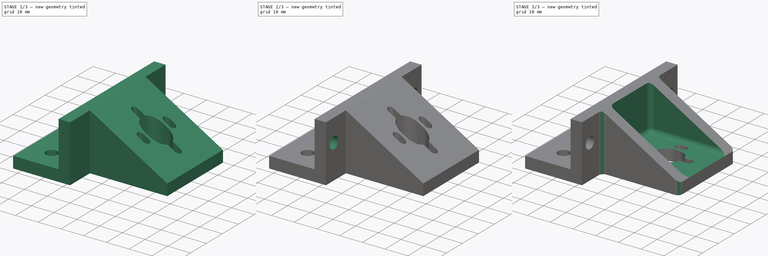
[diagram: build sequence overview — one tinted view per stage of 3, left to right]
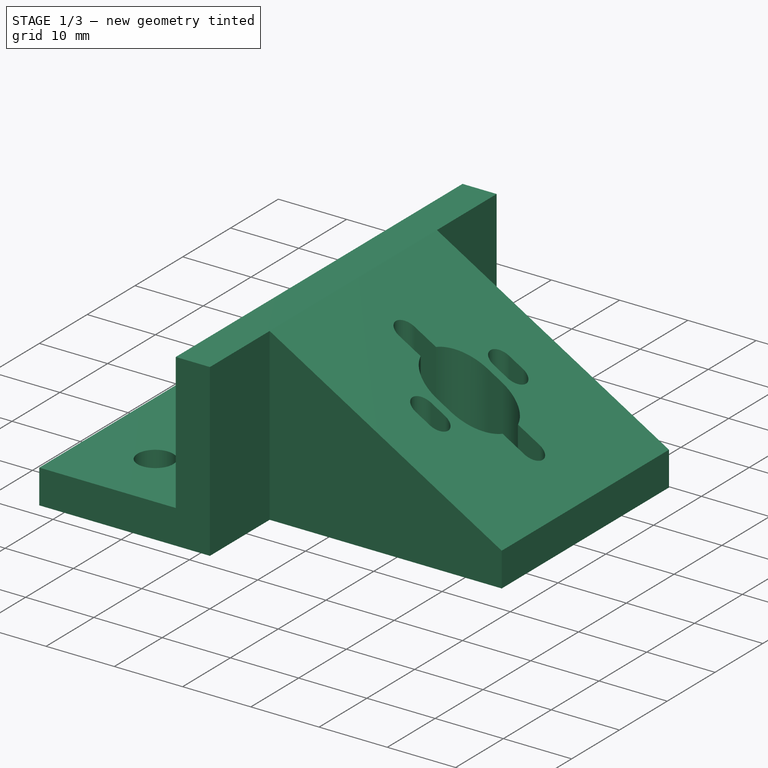
[diagram: stage 1 of 3 — iso view after this stage's code; geometry added in this stage tinted green]
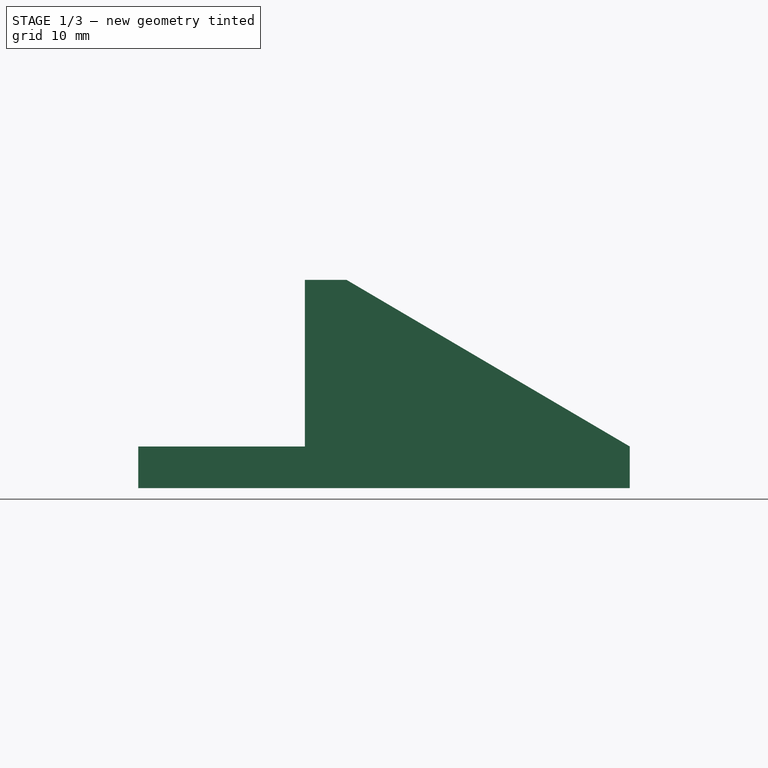
[diagram: stage 1 of 3 — front view after this stage's code; geometry added in this stage tinted green]
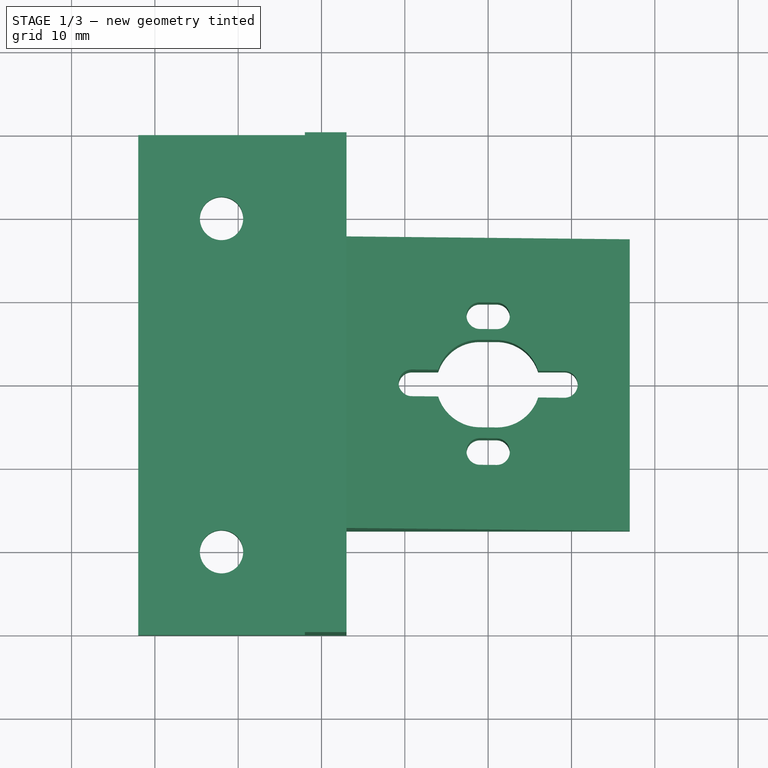
[diagram: stage 1 of 3 — top view after this stage's code; geometry added in this stage tinted green]
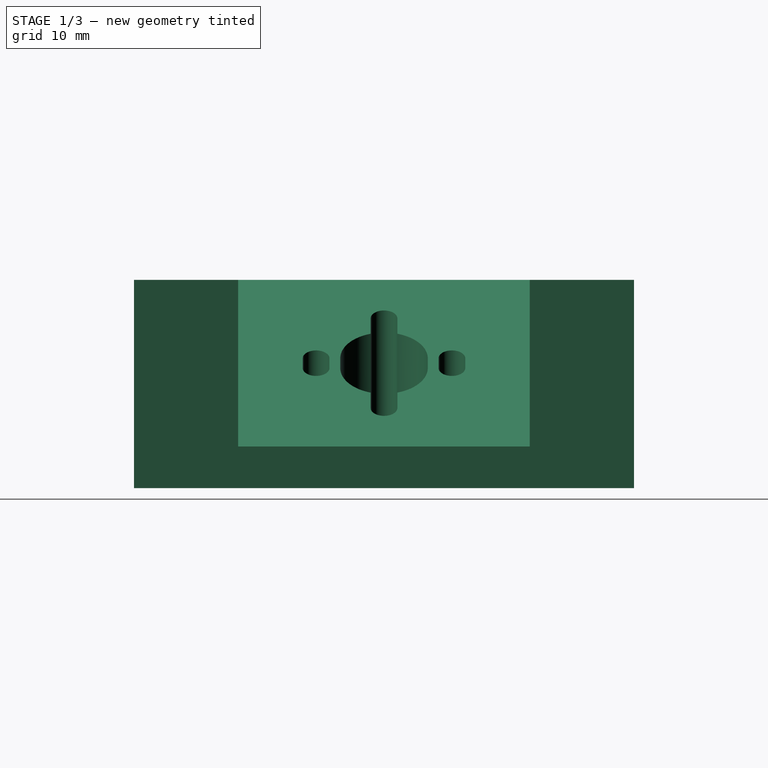
[diagram: stage 1 of 3 — right view after this stage's code; geometry added in this stage tinted green]
FCSTD DOCUMENT  (FreeCAD 0.19R20209 (Git))
Label: trapezewagon-001
License: Creative Commons Attribution
LicenseURL: http://creativecommons.org/licenses/by/4.0/
objects: Sketcher::SketchObject×4, PartDesign::Pocket×3, PartDesign::Pad×1, PartDesign::Fillet×1, PartDesign::Body×1
note: 15 computed .brp shape members not serialized (recipe doc carries the construction recipe); baked Part::Feature solids carry a one-line shape summary decoded from their .brp

FEATURE [Sketcher::SketchObject] Sketch
  MapMode = 5
  Support = -> [XY_Plane]
  expr: Constraints[60] = 16.3 + 2
  expr: Constraints[50] = 16.3 / 2
  sketch-geometry (32):
    g0: Circle [constr] CenterX=0 CenterY=0 CenterZ=0 NormalX=0 NormalY=0 NormalZ=1 AngleXU=0 Radius=11
    g1: LineSegment StartX=-17 StartY=17.5 StartZ=0 EndX=17 EndY=17.5 EndZ=0
    g2: LineSegment StartX=17 StartY=17.5 StartZ=0 EndX=17 EndY=-17.5 EndZ=0
    g3: LineSegment StartX=17 StartY=-17.5 StartZ=0 EndX=-17 EndY=-17.5 EndZ=0
    g4: LineSegment StartX=-42 StartY=30 StartZ=0 EndX=-17 EndY=30 EndZ=0
    g5: LineSegment StartX=-17 StartY=30 StartZ=0 EndX=-17 EndY=17.5 EndZ=0
    g6: LineSegment StartX=-17 StartY=-30 StartZ=0 EndX=-42 EndY=-30 EndZ=0
    g7: LineSegment StartX=-42 StartY=-30 StartZ=0 EndX=-42 EndY=30 EndZ=0
    g8: LineSegment StartX=-17 StartY=-17.5 StartZ=0 EndX=-17 EndY=-30 EndZ=0
    g9: Circle CenterX=-32 CenterY=20 CenterZ=0 NormalX=0 NormalY=0 NormalZ=1 AngleXU=0 Radius=2.6
    g10: Circle CenterX=-32 CenterY=-20 CenterZ=0 NormalX=0 NormalY=0 NormalZ=1 AngleXU=0 Radius=2.6
    g11: ArcOfCircle CenterX=-1 CenterY=3e-16 CenterZ=0 NormalX=0 NormalY=0 NormalZ=1 AngleXU=0 Radius=5.25 StartAngle=1.5708 EndAngle=2.8319
    g12: ArcOfCircle CenterX=1 CenterY=-3e-16 CenterZ=0 NormalX=0 NormalY=0 NormalZ=1 AngleXU=0 Radius=5.25 StartAngle=4.71239 EndAngle=5.9735
    g13: LineSegment StartX=-1 StartY=-5.25 StartZ=0 EndX=1 EndY=-5.25 EndZ=0
    g14: LineSegment StartX=-1 StartY=5.25 StartZ=0 EndX=1 EndY=5.25 EndZ=0
    g15: GeomPoint X=0 Y=0 Z=0
    g16: ArcOfCircle CenterX=-1 CenterY=8.15 CenterZ=0 NormalX=0 NormalY=0 NormalZ=1 AngleXU=0 Radius=1.6 StartAngle=1.5708 EndAngle=4.71239
    g17: ArcOfCircle CenterX=1 CenterY=8.15 CenterZ=0 NormalX=0 NormalY=0 NormalZ=1 AngleXU=0 Radius=1.6 StartAngle=4.71239 EndAngle=7.85398
    g18: LineSegment StartX=-1 StartY=6.55 StartZ=0 EndX=1 EndY=6.55 EndZ=0
    g19: LineSegment StartX=-1 StartY=9.75 StartZ=0 EndX=1 EndY=9.75 EndZ=0
    g20: ArcOfCircle CenterX=-1 CenterY=-8.15 CenterZ=0 NormalX=0 NormalY=0 NormalZ=1 AngleXU=0 Radius=1.6 StartAngle=1.5708 EndAngle=4.71239
    g21: ArcOfCircle CenterX=1 CenterY=-8.15 CenterZ=0 NormalX=0 NormalY=0 NormalZ=1 AngleXU=0 Radius=1.6 StartAngle=4.71239 EndAngle=7.85398
    g22: LineSegment StartX=-1 StartY=-9.75 StartZ=0 EndX=1 EndY=-9.75 EndZ=0
    g23: LineSegment StartX=-1 StartY=-6.55 StartZ=0 EndX=1 EndY=-6.55 EndZ=0
    g24: ArcOfCircle CenterX=-9.15 CenterY=2e-16 CenterZ=0 NormalX=0 NormalY=0 NormalZ=1 AngleXU=0 Radius=1.6 StartAngle=1.5708 EndAngle=4.71239
    g25: ArcOfCircle CenterX=9.15 CenterY=-2e-16 CenterZ=0 NormalX=0 NormalY=0 NormalZ=1 AngleXU=0 Radius=1.6 StartAngle=4.71239 EndAngle=7.85398
    g26: LineSegment StartX=-9.15 StartY=-1.6 StartZ=0 EndX=-6.00025 EndY=-1.6 EndZ=0
    g27: LineSegment StartX=-9.15 StartY=1.6 StartZ=0 EndX=-6.00025 EndY=1.6 EndZ=0
    g28: ArcOfCircle CenterX=-1 CenterY=3e-16 CenterZ=0 NormalX=0 NormalY=0 NormalZ=1 AngleXU=0 Radius=5.25 StartAngle=3.45128 EndAngle=4.71239
    g29: ArcOfCircle CenterX=1 CenterY=-3e-16 CenterZ=0 NormalX=0 NormalY=0 NormalZ=1 AngleXU=0 Radius=5.25 StartAngle=0.309688 EndAngle=1.5708
    g30: LineSegment StartX=6.00025 StartY=1.6 StartZ=0 EndX=9.15 EndY=1.6 EndZ=0
    g31: LineSegment StartX=6.00025 StartY=-1.6 StartZ=0 EndX=9.15 EndY=-1.6 EndZ=0
  constraints (77):
    c: Diameter(g0) = 22
    c: Coincident(g1,g2)
    c: Coincident(g2,g3)
    c: Horizontal(g3)
    c: DistanceY(g2,g2) = 35
    c: Coincident(g4,g5)
    c: Coincident(g8,g6)
    c: Coincident(g6,g7)
    c: Coincident(g7,g4)
    c: Horizontal(g4)
    c: Horizontal(g6)
    c: Vertical(g5)
    c: DistanceY(g7,g7) = 60
    c: Symmetric(g4,g6,g-1)
    c: Symmetric(g2,g1,g-1)
    c: Coincident(g8,g3)
    c: Tangent(g5,g8)
    c: DistanceX(g4,g4) = 25
    c: Equal(g10,g9)
    c: Diameter(g9) = 5.2
    c: Symmetric(g9,g10,g-1)
    c: DistanceY(g10,g9) = 40
    c: DistanceX(g4,g9) = 10
    c: Coincident(g1,g5)
    c: Symmetric(g1,g1,g-2)
    c: Coincident(g0,g-1)
    c: Tangent(g11,g14) = 1.5708
    c: Coincident(g28,g13) = -1.5708
    c: Tangent(g13,g12) = -1.5708
    c: Coincident(g14,g29) = 1.5708
    c: Horizontal(g13)
    c: Equal(g11,g12)
    c: Diameter(g12) = 10.5
    c: DistanceX(g11,g12) = 2
    c: Symmetric(g11,g12,g15)
    c: Coincident(g15,g-1)
    c: Tangent(g16,g19) = 1.5708
    c: Tangent(g16,g18) = -1.5708
    c: Tangent(g18,g17) = -1.5708
    c: Tangent(g19,g17) = 1.5708
    c: Horizontal(g18)
    c: Tangent(g20,g23) = 1.5708
    c: Tangent(g20,g22) = -1.5708
    c: Tangent(g22,g21) = -1.5708
    c: Tangent(g23,g21) = 1.5708
    c: Horizontal(g22)
    c: Equal(g21,g16)
    c: Diameter(g21) = 3.2
    c: DistanceX(g16,g17) = 2
    c: Symmetric(g17,g16,g-2)
    c: DistanceY(g15,g17) = 8.15
    c: DistanceX(g20,g21) = 2
    c: Symmetric(g21,g20,g-2)
    c: DistanceY(g21,g17) = 16.3
    c: Tangent(g24,g27) = 1.5708
    c: Tangent(g24,g26) = -1.5708
    c: Coincident(g31,g25) = -1.5708
    c: Coincident(g30,g25) = 1.5708
    c: Horizontal(g26)
    c: Equal(g24,g25)
    c: DistanceX(g24,g25) = 18.3
    c: Equal(g25,g21)
    c: Symmetric(g25,g24,g15)
    c: Equal(g11,g28)
    c: Coincident(g11,g28)
    c: Equal(g12,g29)
    c: Coincident(g12,g29)
    c: Coincident(g27,g11)
    c: Coincident(g30,g29)
    c: Tangent(g27,g30)
    c: Coincident(g26,g28)
    c: Coincident(g31,g12)
    c: Tangent(g26,g31)
    c: Vertical(g12,g14)
    c: Vertical(g13,g11)
    c: Vertical(g25,g25)
    c: Vertical(g25,g25)
FEATURE [Sketcher::SketchObject] Sketch001
  MapMode = 5
  Placement = pos=(0,0,0) rot=(1,0,0;1.5708rad)
  Support = -> [XZ_Plane]
  sketch-geometry (7):
    g0: LineSegment StartX=-42 StartY=25 StartZ=0 EndX=-22 EndY=25 EndZ=0
    g1: LineSegment StartX=-22 StartY=25 StartZ=0 EndX=-22 EndY=5 EndZ=0
    g2: LineSegment StartX=-22 StartY=5 StartZ=0 EndX=-42 EndY=5 EndZ=0
    g3: LineSegment StartX=-42 StartY=5 StartZ=0 EndX=-42 EndY=25 EndZ=0
    g4: LineSegment StartX=17 StartY=5 StartZ=0 EndX=-17 EndY=25 EndZ=0
    g5: LineSegment StartX=-17 StartY=25 StartZ=0 EndX=17 EndY=25 EndZ=0
    g6: LineSegment StartX=17 StartY=25 StartZ=0 EndX=17 EndY=5 EndZ=0
  constraints (16):
    c: Coincident(g0,g1)
    c: Coincident(g1,g2)
    c: Coincident(g2,g3)
    c: Coincident(g3,g0)
    c: Horizontal(g0)
    c: Horizontal(g2)
    c: Vertical(g1)
    c: Vertical(g3)
    c: Equal(g0,g3)
    c: DistanceX(g0,g0) = 20
    c: Horizontal(g4,g1)
    c: Horizontal(g5)
    c: Coincident(g5,g6)
    c: Vertical(g6)
    c: Coincident(g6,g4)
    c: Coincident(g5,g4)
FEATURE [Sketcher::SketchObject] Sketch003
  MapMode = 5
  Placement = pos=(0,0,0) rot=(0.57735,0.57735,0.57735;2.0944rad)
  Support = -> [YZ_Plane]
  sketch-geometry (2):
    g0: Circle CenterX=-25 CenterY=15 CenterZ=0 NormalX=0 NormalY=0 NormalZ=1 AngleXU=0 Radius=2.6
    g1: Circle CenterX=25 CenterY=15 CenterZ=0 NormalX=0 NormalY=0 NormalZ=1 AngleXU=0 Radius=2.6
  constraints (5):
    c: Equal(g1,g0)
    c: Diameter(g0) = 5.2
    c: Symmetric(g0,g1,g-2)
    c: DistanceX(g0,g1) = 50
    c: DistanceY(g-1,g0) = 15
FEATURE [PartDesign::Pad] Pad
  Length = 25
  Length2 = 100
  Profile = -> Sketch
  Refine = true
  Type = 0
FEATURE [PartDesign::Pocket] Pocket
  BaseFeature = -> Pad
  Length = 5
  Length2 = 100
  Midplane = true
  Profile = -> Sketch001
  Refine = true
  Type = 1
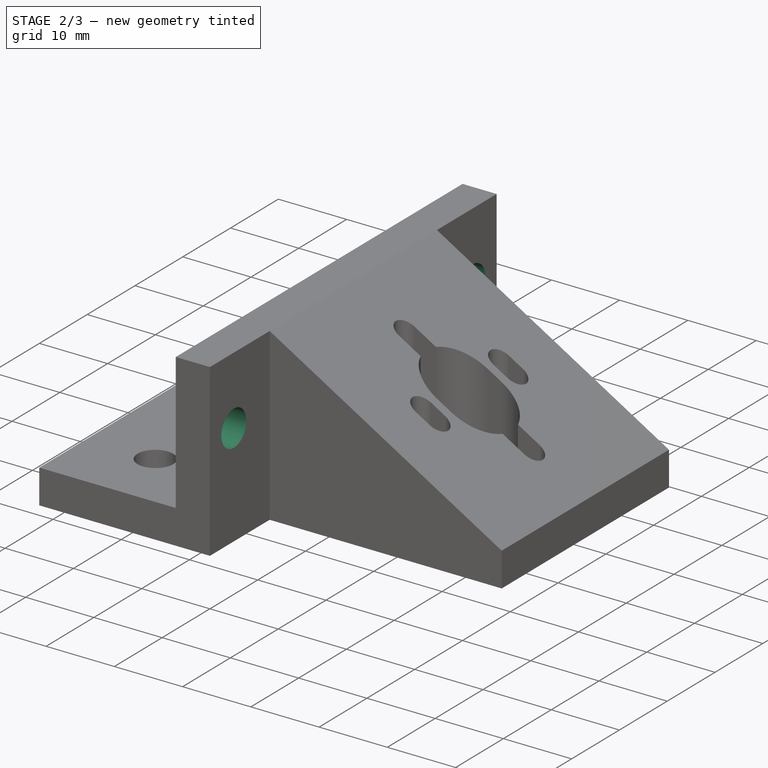
[diagram: stage 2 of 3 — iso view after this stage's code; geometry added in this stage tinted green]
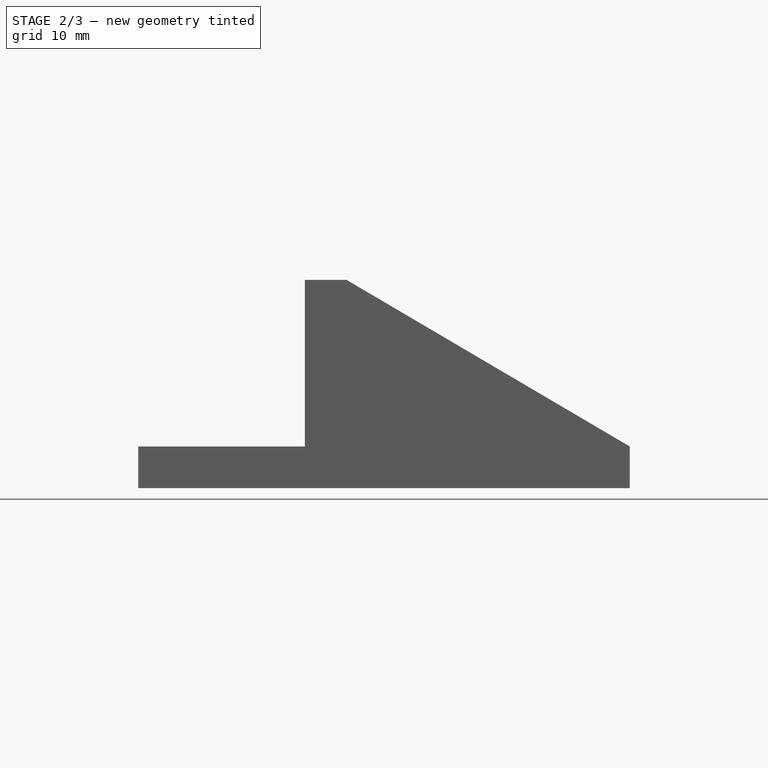
[diagram: stage 2 of 3 — front view after this stage's code; geometry added in this stage tinted green]
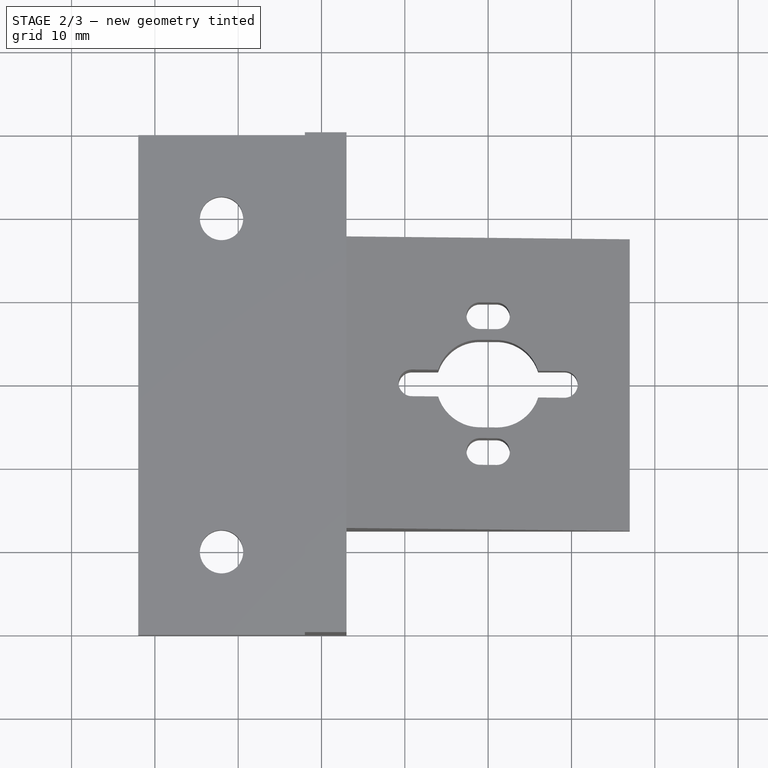
[diagram: stage 2 of 3 — top view after this stage's code; geometry added in this stage tinted green]
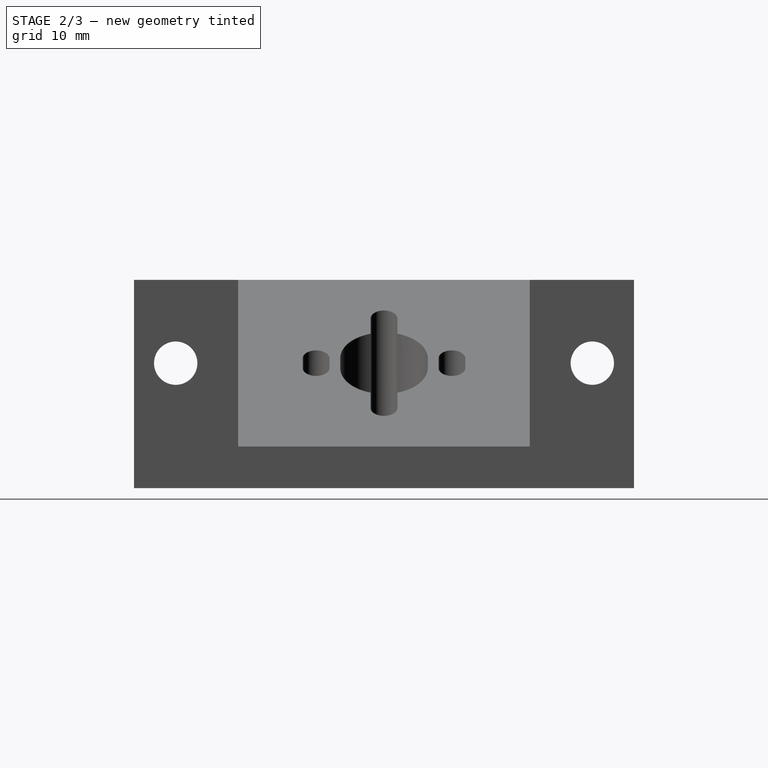
[diagram: stage 2 of 3 — right view after this stage's code; geometry added in this stage tinted green]
FEATURE [PartDesign::Pocket] Pocket001
  BaseFeature = -> Pocket
  Length = 5
  Length2 = 100
  Profile = -> Sketch003
  Refine = true
  Type = 1
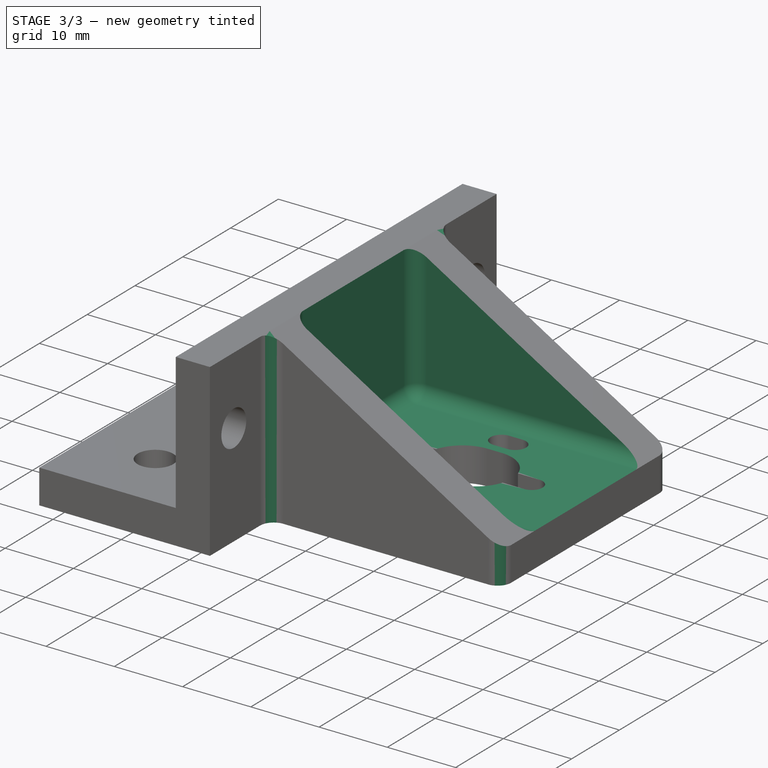
[diagram: stage 3 of 3 — iso view after this stage's code; geometry added in this stage tinted green]
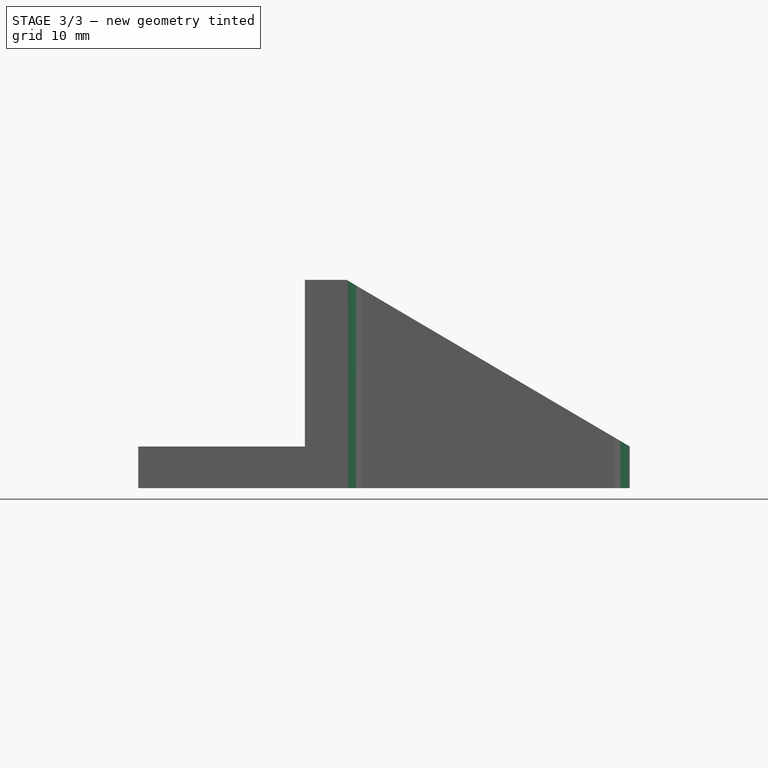
[diagram: stage 3 of 3 — front view after this stage's code; geometry added in this stage tinted green]
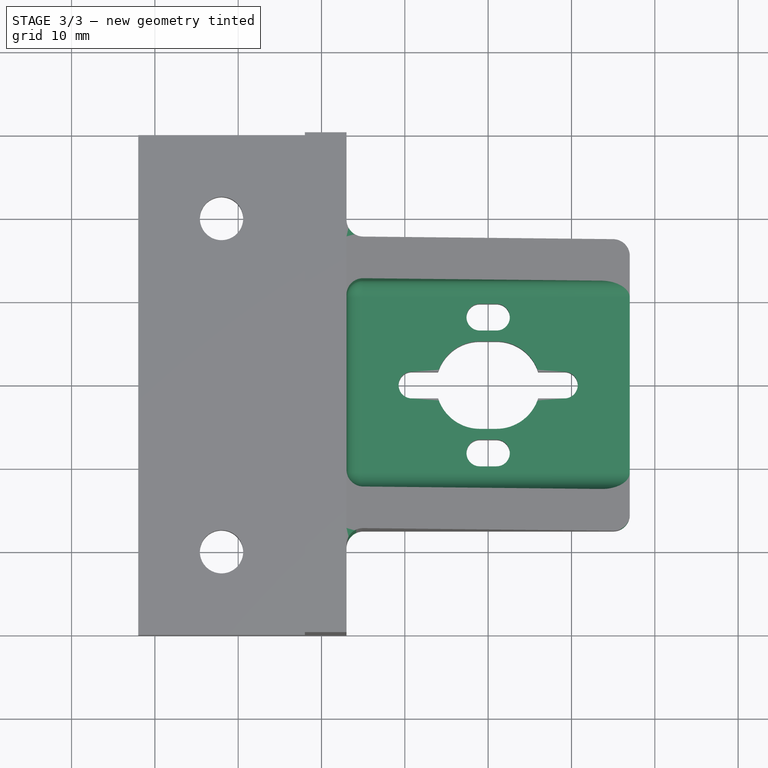
[diagram: stage 3 of 3 — top view after this stage's code; geometry added in this stage tinted green]
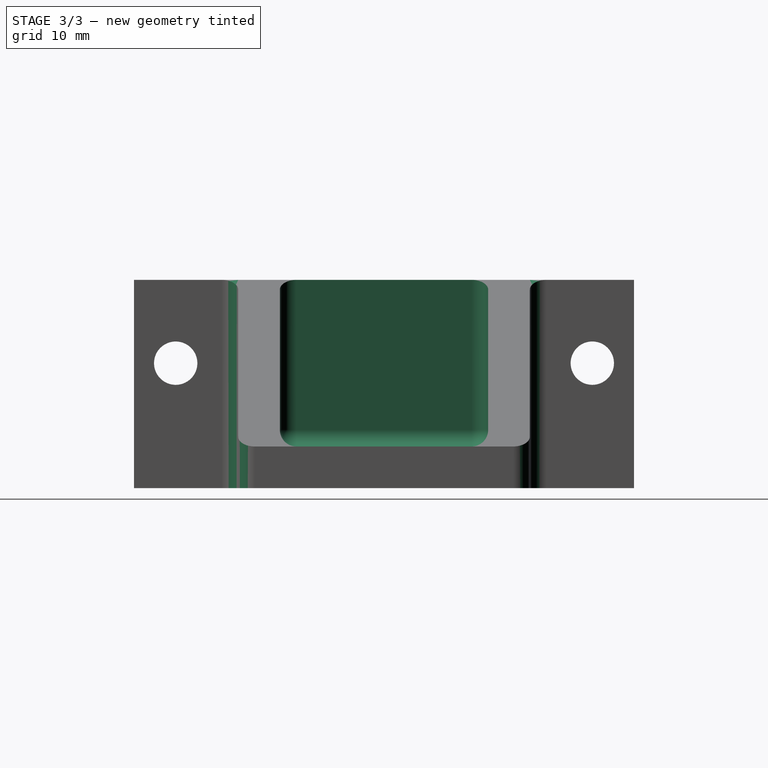
[diagram: stage 3 of 3 — right view after this stage's code; geometry added in this stage tinted green]
FEATURE [Sketcher::SketchObject] Sketch004
  ExternalGeometry = -> [Pocket001]
  MapMode = 5
  Placement = pos=(0,0,0) rot=(1,0,0;1.5708rad)
  Support = -> [XZ_Plane]
  sketch-geometry (4):
    g0: LineSegment StartX=-17 StartY=25 StartZ=0 EndX=22.8785 EndY=25 EndZ=0
    g1: LineSegment StartX=22.8785 StartY=25 StartZ=0 EndX=22.8785 EndY=5 EndZ=0
    g2: LineSegment StartX=22.8785 StartY=5 StartZ=0 EndX=-17 EndY=5 EndZ=0
    g3: LineSegment StartX=-17 StartY=5 StartZ=0 EndX=-17 EndY=25 EndZ=0
  constraints (10):
    c: Coincident(g0,g1)
    c: Coincident(g1,g2)
    c: Coincident(g2,g3)
    c: Coincident(g3,g0)
    c: Horizontal(g0)
    c: Horizontal(g2)
    c: Vertical(g1)
    c: Vertical(g3)
    c: Coincident(g0,g-3)
    c: DistanceY(g-3,g2) = 5
FEATURE [PartDesign::Pocket] Pocket002
  BaseFeature = -> Pocket001
  Length = 25
  Length2 = 100
  Midplane = true
  Profile = -> Sketch004
  Refine = true
  Type = 0
FEATURE [PartDesign::Fillet] Fillet
  Base = -> Pocket002 [Edge43,Edge34,Edge2,Edge106,Edge105,Edge104,Edge114,Edge103,Edge4]
  BaseFeature = -> Pocket002
  Radius = 2
  Refine = true
  SupportTransform = true
FEATURE [PartDesign::Body] Body
  Group = -> [Sketch,Sketch001,Sketch003,Pad,Pocket,Pocket001,Sketch004,Pocket002,Fillet]
  Origin = -> Origin
  Tip = -> Fillet
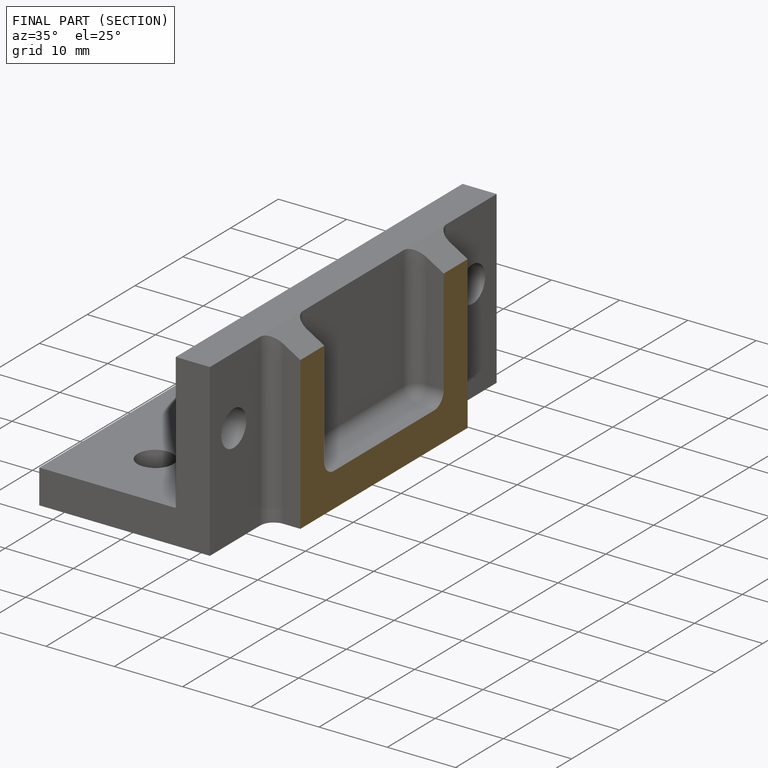
[diagram: finished part — half-section view (interior)]
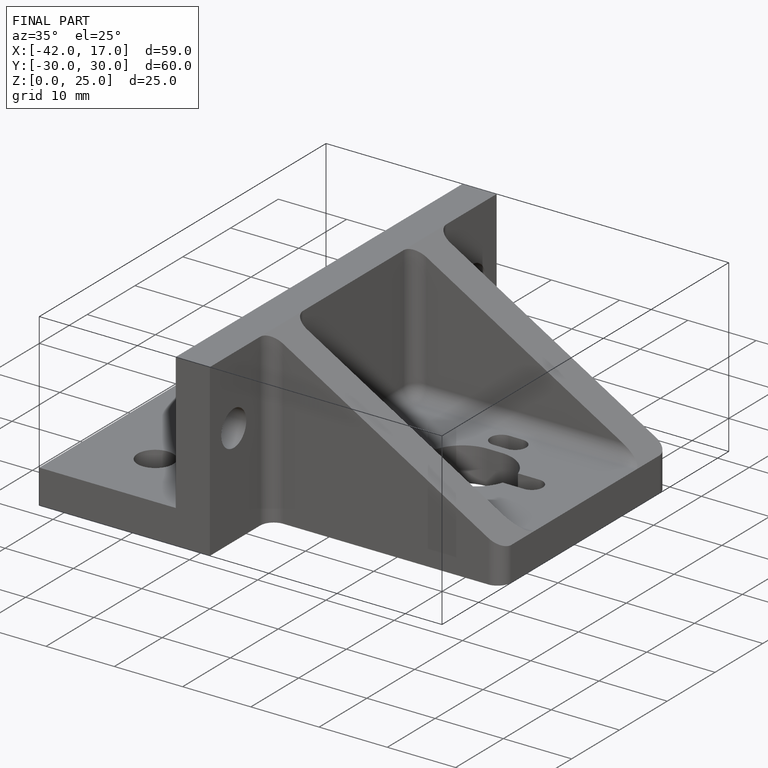
[diagram: finished part — iso view with bounding-box wireframe]
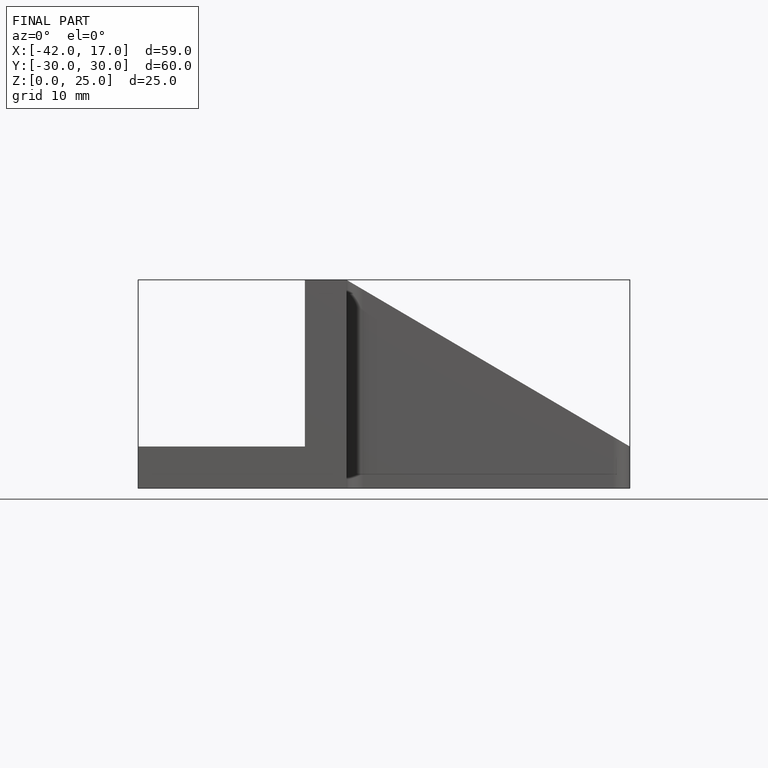
[diagram: finished part — front view with bounding-box wireframe]
